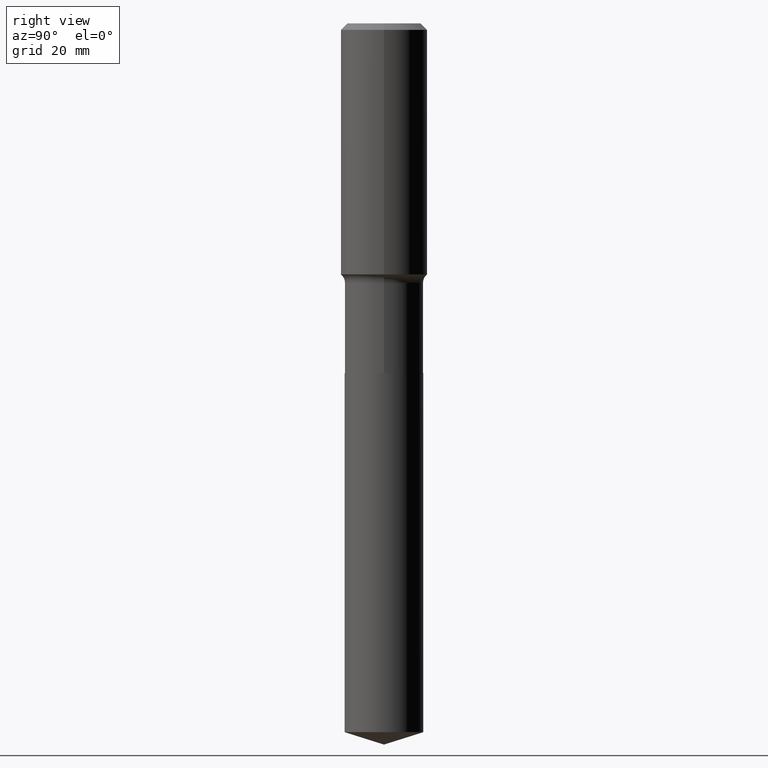
[diagram: clean part render]
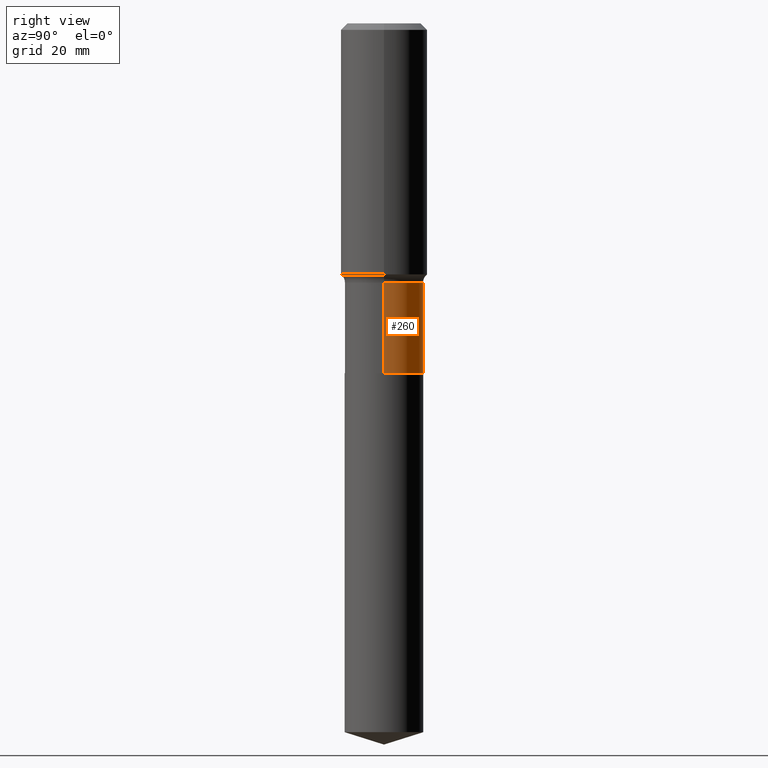
[diagram: same view with one face highlighted and labeled with its STEP entity id]
A machine part, right view. The second image highlights one B-rep face of the part: STEP entity #260.
In plain terms, the highlighted cylindrical surface (partial cylindrical patch) has radius 7.2504 mm, axis along (-0, 0, 1).
Its self-contained STEP definition (entity closure, byte-faithful):
#1 = DIRECTION ( 'NONE',  ( -2.445468806185136597E-29, 3.491481338843145583E-15, 1.000000000000000000 ) ) ;
#14 = FACE_OUTER_BOUND ( 'NONE', #419, .T. ) ;
#23 = VERTEX_POINT ( 'NONE', #256 ) ;
#26 = ORIENTED_EDGE ( 'NONE', *, *, #111, .F. ) ;
#32 = DIRECTION ( 'NONE',  ( 1.000000000000000000, -6.982962677686265922E-15, 0.000000000000000000 ) ) ;
#61 = VECTOR ( 'NONE', #225, 39.37007874015748143 ) ;
#66 = VERTEX_POINT ( 'NONE', #263 ) ;
#92 = EDGE_CURVE ( 'NONE', #66, #141, #258, .T. ) ;
#111 = EDGE_CURVE ( 'NONE', #403, #23, #425, .T. ) ;
#127 = CYLINDRICAL_SURFACE ( 'NONE', #454, 0.2854500000000000370 ) ;
#135 = ORIENTED_EDGE ( 'NONE', *, *, #92, .T. ) ;
#140 = VECTOR ( 'NONE', #171, 39.37007874015748143 ) ;
#141 = VERTEX_POINT ( 'NONE', #467 ) ;
#161 = DIRECTION ( 'NONE',  ( -2.445468806185136597E-29, 3.491481338843145583E-15, 1.000000000000000000 ) ) ;
#171 = DIRECTION ( 'NONE',  ( -2.445468806185136877E-29, 3.491481338843145188E-15, 1.000000000000000000 ) ) ;
#184 = CARTESIAN_POINT ( 'NONE',  ( 0.2854499999999999815, -8.567396909253303813E-15, -1.882900000000000240 ) ) ;
#195 = DIRECTION ( 'NONE',  ( 1.000000000000000000, -6.982962677686265922E-15, 0.000000000000000000 ) ) ;
#196 = DIRECTION ( 'NONE',  ( 1.000000000000000000, -6.982962677686265922E-15, 4.876176775795935232E-29 ) ) ;
#225 = DIRECTION ( 'NONE',  ( -2.445468806185136877E-29, 3.491481338843145188E-15, 1.000000000000000000 ) ) ;
#233 = CARTESIAN_POINT ( 'NONE',  ( 0.000000000000000000, 0.000000000000000000, 0.000000000000000000 ) ) ;
#256 = CARTESIAN_POINT ( 'NONE',  ( -0.2854499999999999815, -5.691071852821104709E-15, -1.882900000000000240 ) ) ;
#258 = CIRCLE ( 'NONE', #431, 0.2854500000000000925 ) ;
#260 = ADVANCED_FACE ( 'NONE', ( #14 ), #127, .T. ) ;
#263 = CARTESIAN_POINT ( 'NONE',  ( 0.2854500000000000925, -1.085780866753440800E-14, -2.538899999999999935 ) ) ;
#268 = AXIS2_PLACEMENT_3D ( 'NONE', #352, #161, #195 ) ;
#277 = DIRECTION ( 'NONE',  ( -2.445468806185136597E-29, 3.491481338843145583E-15, 1.000000000000000000 ) ) ;
#287 = ORIENTED_EDGE ( 'NONE', *, *, #422, .T. ) ;
#302 = CARTESIAN_POINT ( 'NONE',  ( -0.2854500000000000370, 2.028244239227206244E-15, -1.404110021513263065E-29 ) ) ;
#321 = ORIENTED_EDGE ( 'NONE', *, *, #363, .F. ) ;
#352 = CARTESIAN_POINT ( 'NONE',  ( 4.604573215165994355E-29, -6.574110212907759252E-15, -1.882900000000000240 ) ) ;
#363 = EDGE_CURVE ( 'NONE', #66, #403, #486, .T. ) ;
#367 = CARTESIAN_POINT ( 'NONE',  ( 6.208800752023443286E-29, -8.864521971188861865E-15, -2.538899999999999935 ) ) ;
#403 = VERTEX_POINT ( 'NONE', #184 ) ;
#411 = LINE ( 'NONE', #302, #61 ) ;
#419 = EDGE_LOOP ( 'NONE', ( #135, #287, #26, #321 ) ) ;
#422 = EDGE_CURVE ( 'NONE', #141, #23, #411, .T. ) ;
#425 = CIRCLE ( 'NONE', #268, 0.2854499999999999815 ) ;
#431 = AXIS2_PLACEMENT_3D ( 'NONE', #367, #1, #32 ) ;
#454 = AXIS2_PLACEMENT_3D ( 'NONE', #233, #277, #196 ) ;
#467 = CARTESIAN_POINT ( 'NONE',  ( -0.2854500000000000925, -5.691071852821104709E-15, -2.538899999999999935 ) ) ;
#480 = CARTESIAN_POINT ( 'NONE',  ( 0.2854500000000000370, -1.993286696345544956E-15, 1.391904660650949962E-29 ) ) ;
#486 = LINE ( 'NONE', #480, #140 ) ;